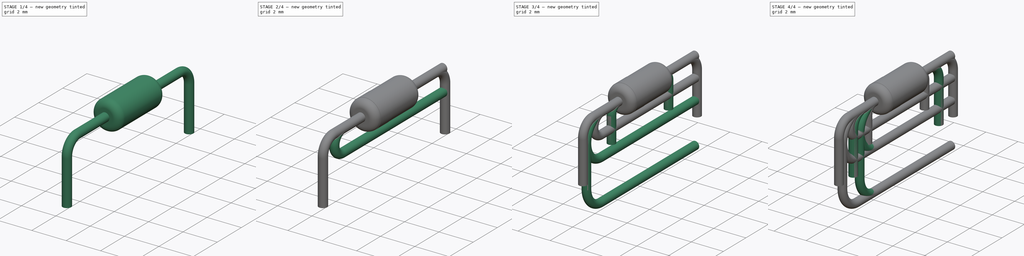
[diagram: build sequence overview — one tinted view per stage of 4, left to right]
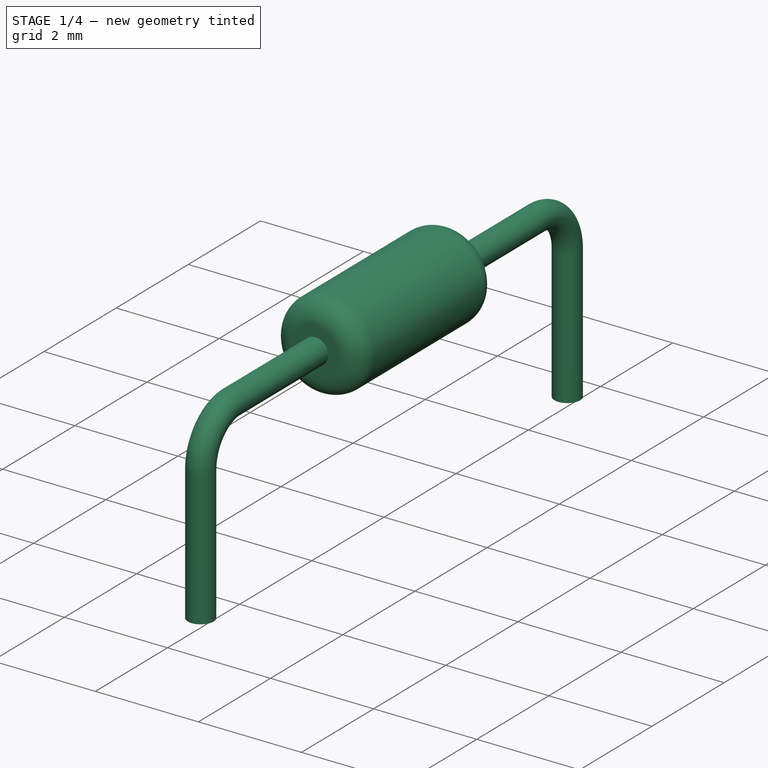
[diagram: stage 1 of 4 — iso view after this stage's code; geometry added in this stage tinted green]
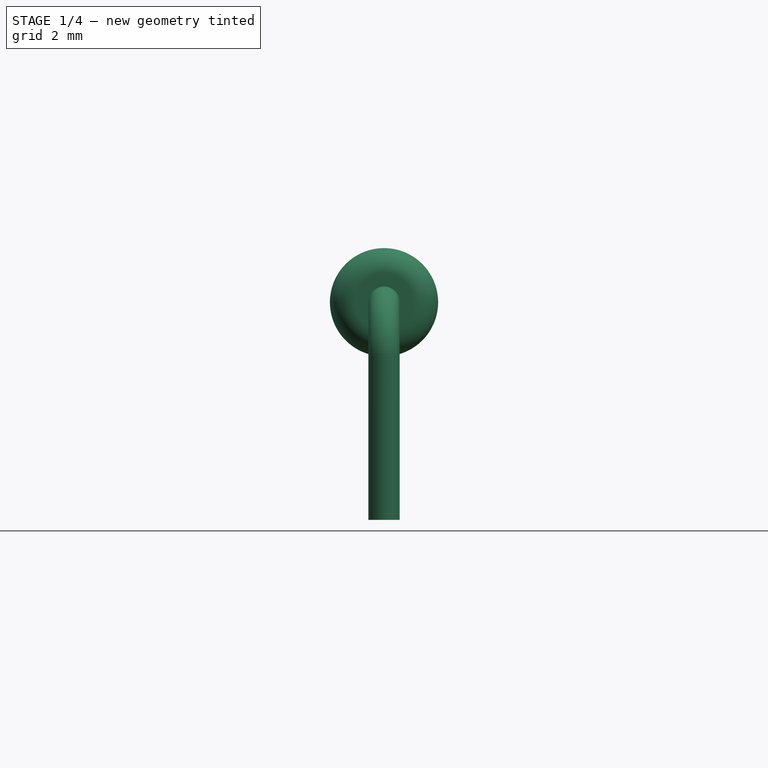
[diagram: stage 1 of 4 — front view after this stage's code; geometry added in this stage tinted green]
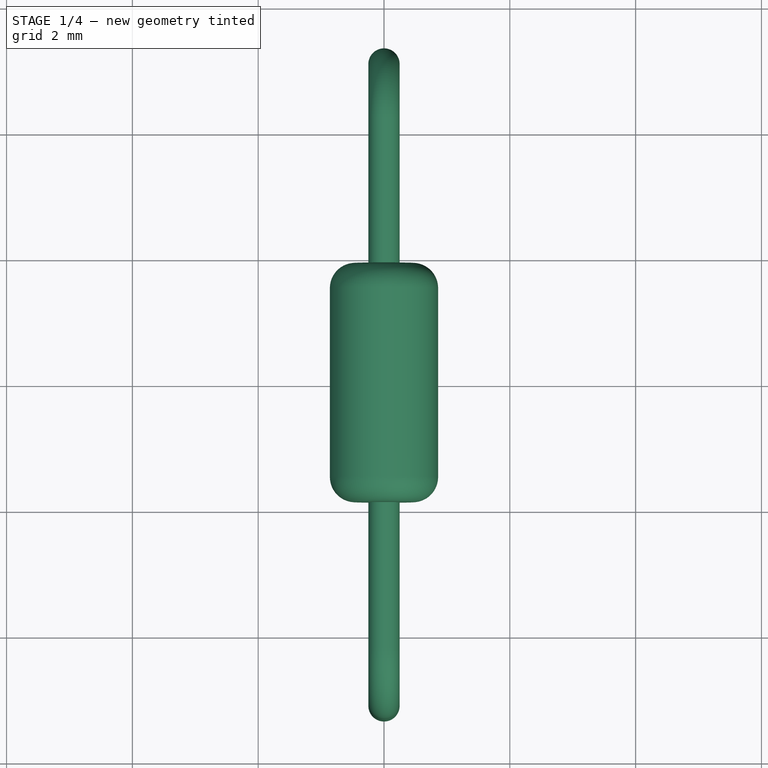
[diagram: stage 1 of 4 — top view after this stage's code; geometry added in this stage tinted green]
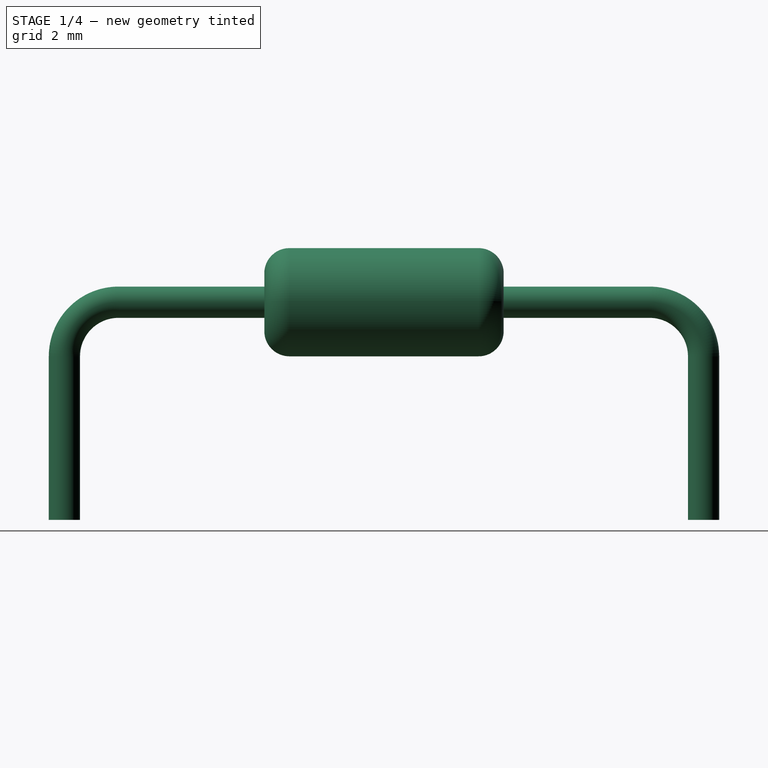
[diagram: stage 1 of 4 — right view after this stage's code; geometry added in this stage tinted green]
FCSTD DOCUMENT  (FreeCAD 0.19R17069 (Git))
Label: DO-35
License: All rights reserved
LicenseURL: http://en.wikipedia.org/wiki/All_rights_reserved
objects: Sketcher::SketchObject×20, PartDesign::Body×11, PartDesign::AdditivePipe×9, PartDesign::Pad×2, PartDesign::Fillet×1, Part::MultiFuse×1
note: 55 computed .brp shape members not serialized (recipe doc carries the construction recipe); baked Part::Feature solids carry a one-line shape summary decoded from their .brp

FEATURE [Sketcher::SketchObject] Sketch
  AttachmentOffset = pos=(0,0,0) rot=(0,0,1;-1.5708rad)
  MapMode = 5
  Placement = pos=(0,0,0) rot=(-0.57735,-0.57735,0.57735;4.18879rad)
  Support = -> [XZ_Plane]
  expr: Constraints[1] = (1.53 + 1.91) / 2 / 2
  sketch-geometry (1):
    g0: Circle CenterX=0 CenterY=0 CenterZ=0 NormalX=0 NormalY=0 NormalZ=1 AngleXU=0 Radius=0.86
  constraints (2):
    c: Coincident(g0,g-1)
    c: Radius(g0) = 0.86
FEATURE [PartDesign::Pad] Pad
  Length = 3.805
  Length2 = 100
  Midplane = true
  Placement = pos=(0,0,0) rot=(1,0,0;1.5708rad)
  Profile = -> Sketch
  Type = 0
  expr: Length = (3.05 + 4.56) / 2
FEATURE [PartDesign::Body] Body002  label="Leads_P7.62"
  Group = -> [Sketch002,Sketch003,AdditivePipe]
  Origin = -> Origin002
  Tip = -> AdditivePipe
FEATURE [Sketcher::SketchObject] Sketch004
  MapMode = 5
  Placement = pos=(0,0,0) rot=(0.57735,0.57735,0.57735;2.0944rad)
  Support = -> [YZ_Plane003]
  expr: Constraints[11] = (1.53 + 1.91) / 2 / 2
  expr: Constraints[10] = 4 * 2.54
  sketch-geometry (5):
    g0: LineSegment StartX=-4.22 StartY=0 StartZ=0 EndX=4.22 EndY=0 EndZ=0
    g1: LineSegment StartX=-5.08 StartY=-0.86 StartZ=0 EndX=-5.08 EndY=-3.46 EndZ=0
    g2: LineSegment StartX=5.08 StartY=-0.86 StartZ=0 EndX=5.08 EndY=-3.46 EndZ=0
    g3: ArcOfCircle CenterX=-4.22 CenterY=-0.86 CenterZ=0 NormalX=0 NormalY=0 NormalZ=1 AngleXU=0 Radius=0.86 StartAngle=1.5708 EndAngle=3.14159
    g4: ArcOfCircle CenterX=4.22 CenterY=-0.86 CenterZ=0 NormalX=0 NormalY=0 NormalZ=1 AngleXU=0 Radius=0.86 StartAngle=0 EndAngle=1.5708
  constraints (13):
    c: Vertical(g1)
    c: Vertical(g2)
    c: Equal(g2,g1)
    c: Tangent(g0,g3) = 1.5708
    c: Tangent(g1,g3) = -1.5708
    c: Tangent(g0,g4) = 1.5708
    c: Tangent(g2,g4) = 1.5708
    c: Symmetric(g0,g0,g-2)
    c: Equal(g4,g3)
    c: PointOnObject(g0,g-1)
    c: DistanceX(g1,g2) = 10.16
    c: DistanceY(g1,g0) = 0.86
    c: DistanceY(g1,g1) = 2.6
FEATURE [Sketcher::SketchObject] Sketch005
  AttachmentOffset = pos=(0,0,0) rot=(0,0,1;-1.5708rad)
  MapMode = 5
  Placement = pos=(0,0,0) rot=(-0.57735,-0.57735,0.57735;4.18879rad)
  Support = -> [XZ_Plane003]
  expr: Constraints[1] = (0.46 + 0.533) / 2 / 2
  sketch-geometry (1):
    g0: Circle CenterX=0 CenterY=0 CenterZ=0 NormalX=0 NormalY=0 NormalZ=1 AngleXU=0 Radius=0.24825
  constraints (2):
    c: Coincident(g0,g-1)
    c: Radius(g0) = 0.24825
FEATURE [PartDesign::AdditivePipe] AdditivePipe001
  AuxilleryCurvelinear = true
  AuxillerySpineTangent = false
  Binormal = (0,0,0)
  Mode = 0
  Placement = pos=(0,0,0) rot=(1,0,0;1.5708rad)
  Profile = -> Sketch005
  Refine = true
  Spine = -> Sketch004
  SpineTangent = false
  Transformation = 0
  Transition = 0
FEATURE [PartDesign::Body] Body010  label="Leads_Vertical_K_Down_P1.28"
  Group = -> [Sketch018,Sketch019,AdditivePipe008]
  Origin = -> Origin010
  Placement = pos=(0,0,0) rot=(0,0,1;3.14159rad)
  Tip = -> AdditivePipe008
FEATURE [PartDesign::Fillet] Fillet
  Base = -> Pad [Edge2,Edge3]
  BaseFeature = -> Pad
  Placement = pos=(0,0,0) rot=(1,0,0;1.5708rad)
  Radius = 0.4
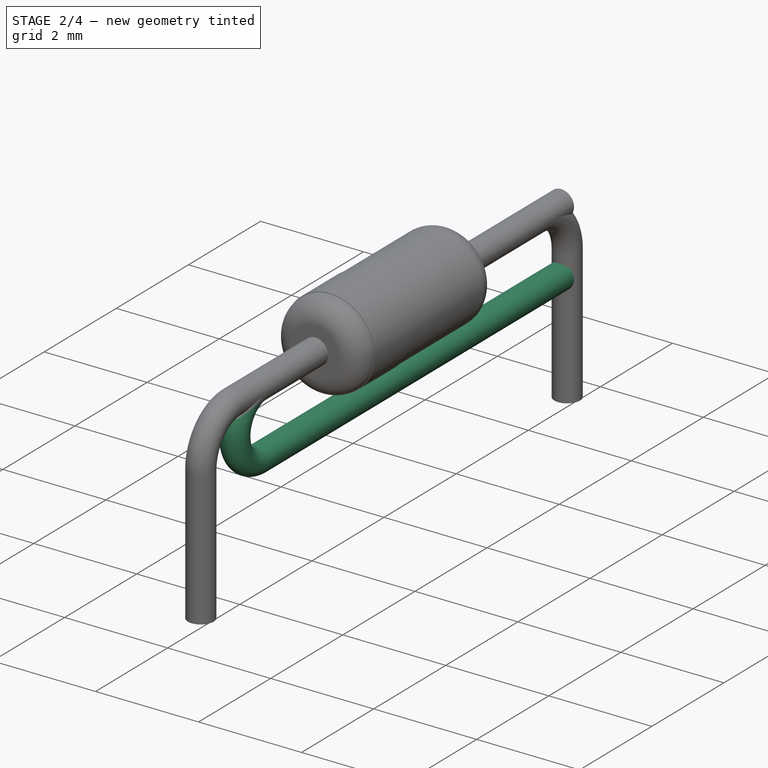
[diagram: stage 2 of 4 — iso view after this stage's code; geometry added in this stage tinted green]
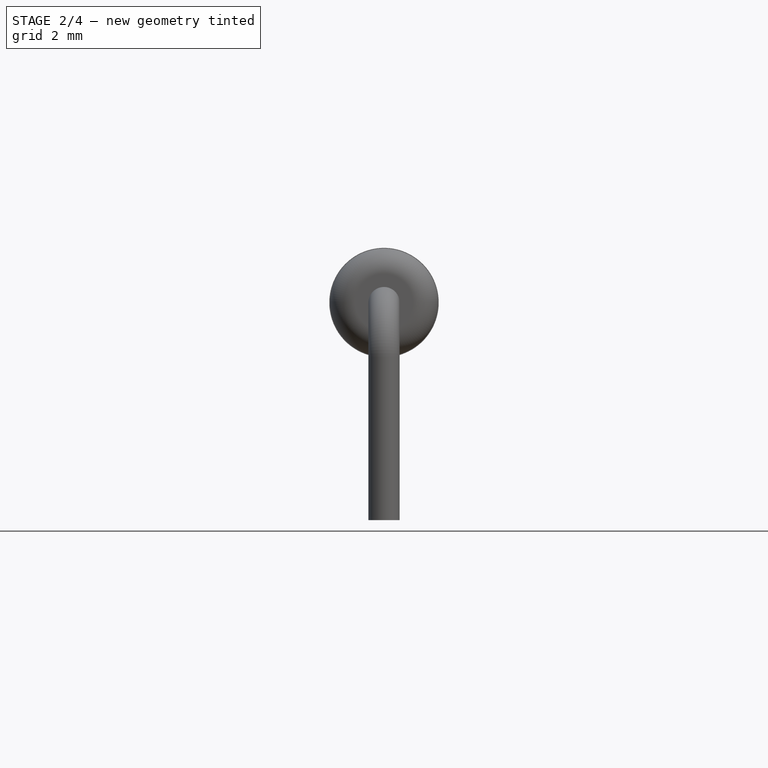
[diagram: stage 2 of 4 — front view after this stage's code; geometry added in this stage tinted green]
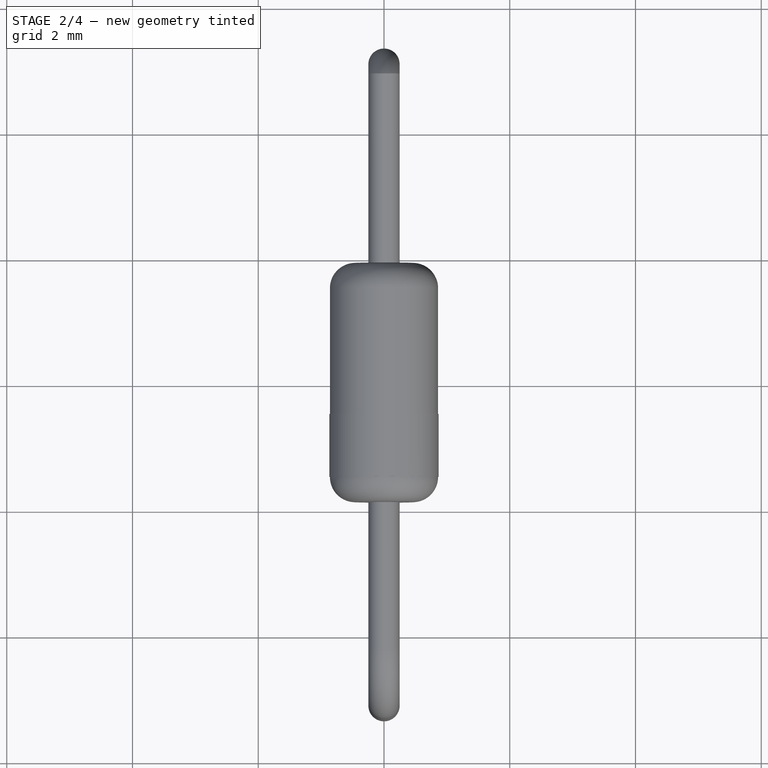
[diagram: stage 2 of 4 — top view after this stage's code; geometry added in this stage tinted green]
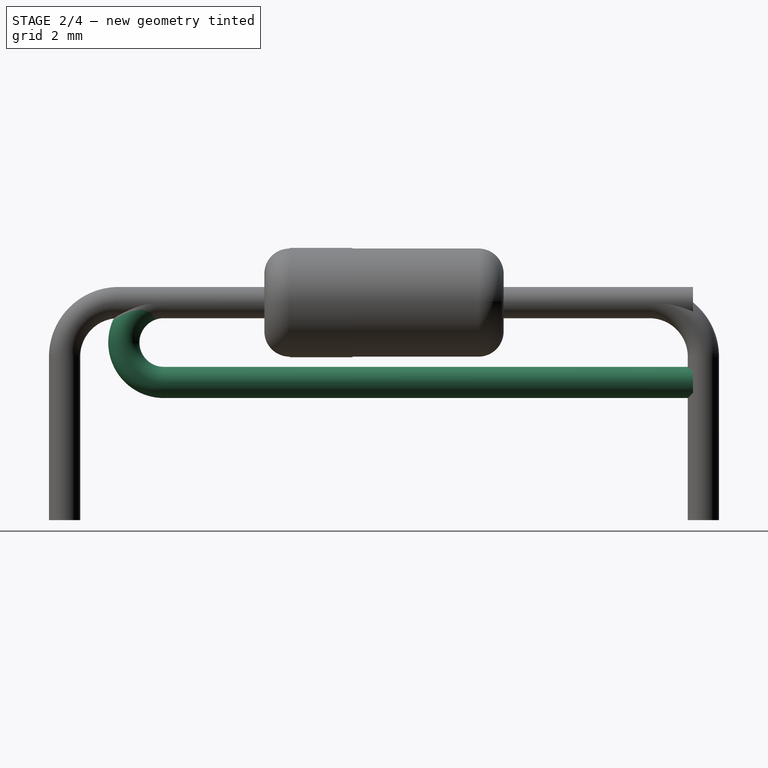
[diagram: stage 2 of 4 — right view after this stage's code; geometry added in this stage tinted green]
FEATURE [Sketcher::SketchObject] Sketch001
  AttachmentOffset = pos=(0,0,1) rot=(0,0,1;-1.5708rad)
  MapMode = 5
  Placement = pos=(0,-1,-2e-16) rot=(-0.57735,-0.57735,0.57735;4.18879rad)
  Support = -> [XZ_Plane001]
  expr: Constraints[1] = (1.53 + 1.91) / 2 / 2 + 0.01
  sketch-geometry (1):
    g0: Circle CenterX=0 CenterY=0 CenterZ=0 NormalX=0 NormalY=0 NormalZ=1 AngleXU=0 Radius=0.87
  constraints (2):
    c: Coincident(g0,g-1)
    c: Radius(g0) = 0.87
FEATURE [PartDesign::Pad] Pad001
  Length = 1
  Length2 = 100
  Midplane = true
  Placement = pos=(0,0,0) rot=(1,0,0;1.5708rad)
  Profile = -> Sketch001
  Type = 0
FEATURE [PartDesign::Body] Body009  label="Leads_Vertical_K_Up_P1.28"
  Group = -> [Sketch016,Sketch017,AdditivePipe007]
  Origin = -> Origin009
  Tip = -> AdditivePipe007
FEATURE [Sketcher::SketchObject] Sketch018
  MapMode = 5
  Placement = pos=(0,0,0) rot=(0.57735,0.57735,0.57735;2.0944rad)
  Support = -> [YZ_Plane010]
  expr: Constraints[16] = (2.03 + 2.72) / 2 / 2
  expr: Constraints[15] = (4.06 + 5.2) / 2 / 2
  expr: Constraints[7] = (4.06 + 5.2) / 2 / 2
  expr: Constraints[3] = 2.54 / 4
  sketch-geometry (7):
    g0: LineSegment StartX=4.915 StartY=0 StartZ=0 EndX=-3.5025 EndY=-2.07e-14 EndZ=0
    g1: ArcOfCircle CenterX=-3.5025 CenterY=-0.635 CenterZ=0 NormalX=0 NormalY=0 NormalZ=1 AngleXU=0 Radius=0.635 StartAngle=1.5708 EndAngle=4.71239
    g2: LineSegment StartX=-3.5025 StartY=-1.27 StartZ=0 EndX=4.915 EndY=-1.27 EndZ=0
    g3: GeomPoint X=2.315 Y=0 Z=0
    g4: GeomPoint X=2.315 Y=-1.27 Z=0
    g5: GeomPoint X=-4.1375 Y=-0.635 Z=0
    g6: GeomPoint X=-2.315 Y=0 Z=0
  constraints (17):
    c: PointOnObject(g0,g-1)
    c: PointOnObject(g0,g-1)
    c: Horizontal(g2)
    c: Radius(g1) = 0.635
    c: Tangent(g1,g0) = -1.5708
    c: Tangent(g2,g1) = -1.5708
    c: PointOnObject(g3,g0)
    c: DistanceX(g-1,g3) = 2.315
    c: DistanceX(g3,g0) = 2.6
    c: PointOnObject(g4,g2)
    c: DistanceX(g4,g2) = 2.6
    c: Vertical(g0,g2)
    c: PointOnObject(g5,g1)
    c: Horizontal(g1,g5)
    c: PointOnObject(g6,g0)
    c: DistanceX(g6,g-1) = 2.315
    c: DistanceX(g0,g6) = 1.1875
FEATURE [Sketcher::SketchObject] Sketch019
  AttachmentOffset = pos=(0,0,0) rot=(0,0,1;-1.5708rad)
  MapMode = 5
  Placement = pos=(0,0,0) rot=(-0.57735,-0.57735,0.57735;4.18879rad)
  Support = -> [XZ_Plane010]
  expr: Constraints[1] = (0.46 + 0.533) / 2 / 2
  sketch-geometry (1):
    g0: Circle CenterX=0 CenterY=0 CenterZ=0 NormalX=0 NormalY=0 NormalZ=1 AngleXU=0 Radius=0.24825
  constraints (2):
    c: Coincident(g0,g-1)
    c: Radius(g0) = 0.24825
FEATURE [PartDesign::AdditivePipe] AdditivePipe008
  AuxilleryCurvelinear = true
  AuxillerySpineTangent = false
  Binormal = (0,0,0)
  Mode = 0
  Placement = pos=(0,0,0) rot=(1,0,0;1.5708rad)
  Profile = -> Sketch019
  Refine = true
  Spine = -> Sketch018
  SpineTangent = false
  Transformation = 0
  Transition = 0
FEATURE [PartDesign::Body] Body
  Group = -> [Sketch,Pad,Fillet]
  Origin = -> Origin
  Tip = -> Fillet
FEATURE [Part::MultiFuse] Fusion  label="DO-35_P10.16"
  Shapes = -> [Body001,Body,Body003]
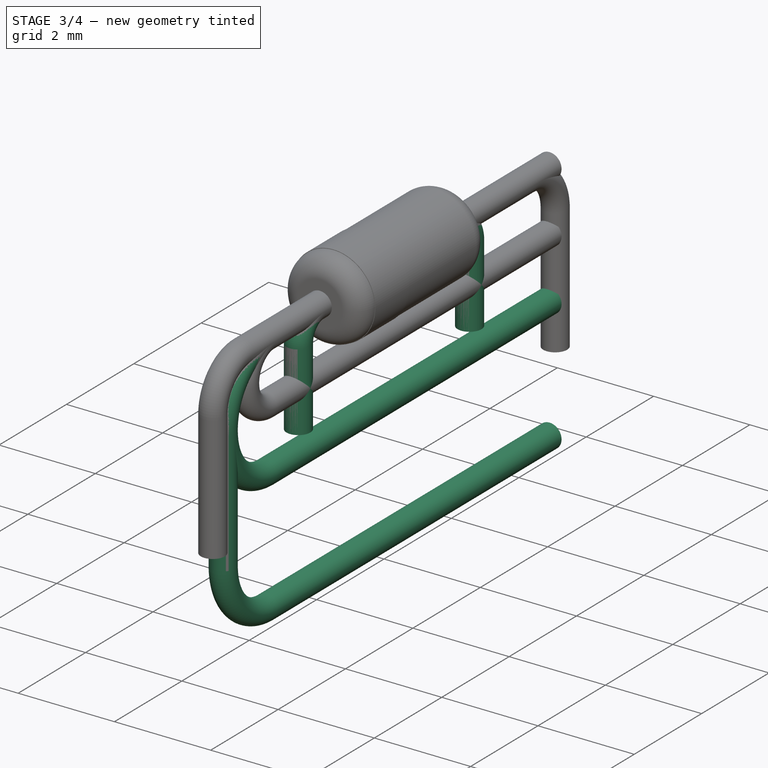
[diagram: stage 3 of 4 — iso view after this stage's code; geometry added in this stage tinted green]
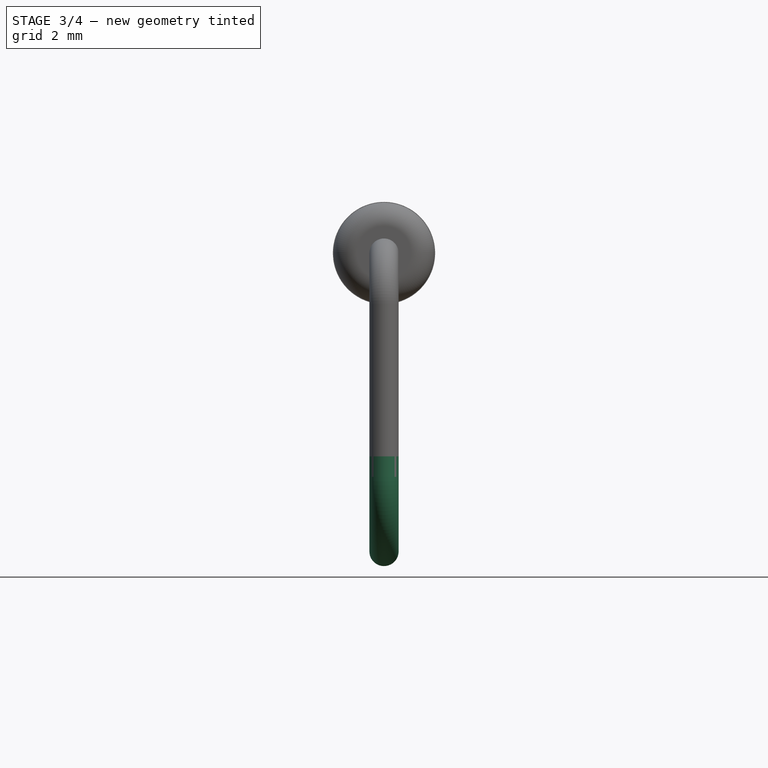
[diagram: stage 3 of 4 — front view after this stage's code; geometry added in this stage tinted green]
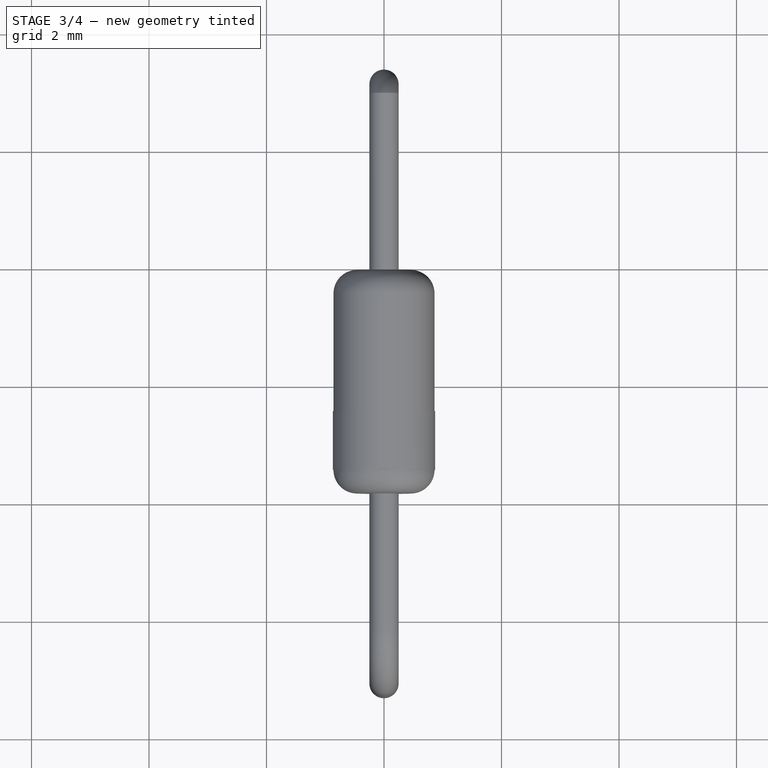
[diagram: stage 3 of 4 — top view after this stage's code; geometry added in this stage tinted green]
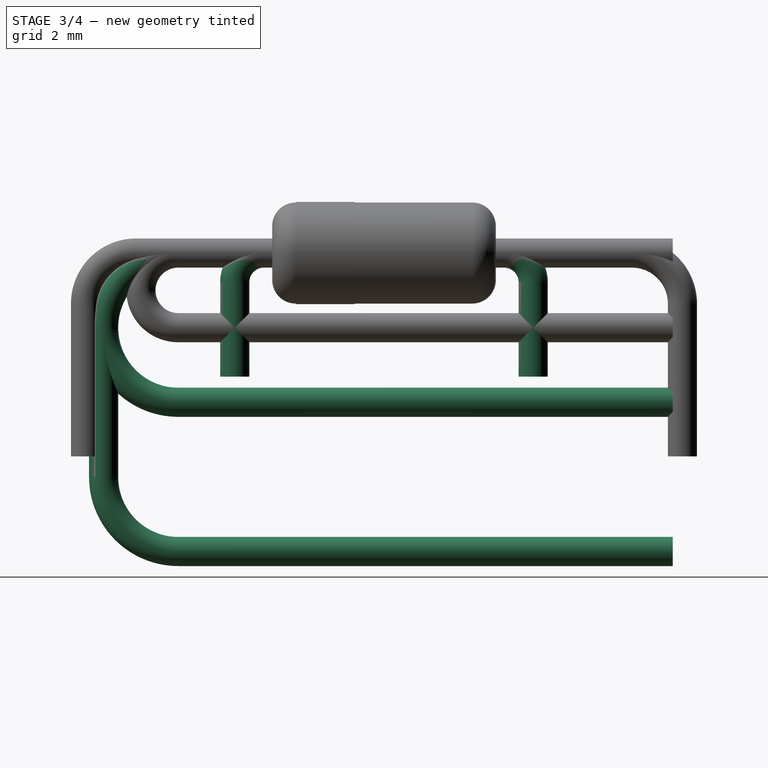
[diagram: stage 3 of 4 — right view after this stage's code; geometry added in this stage tinted green]
FEATURE [PartDesign::Body] Body005  label="Leads_Vertical_K_Up_P5.08"
  Group = -> [Sketch008,Sketch009,AdditivePipe003]
  Origin = -> Origin005
  Tip = -> AdditivePipe003
FEATURE [Sketcher::SketchObject] Sketch010
  MapMode = 5
  Placement = pos=(0,0,0) rot=(0.57735,0.57735,0.57735;2.0944rad)
  Support = -> [YZ_Plane006]
  expr: Constraints[16] = (2.03 + 2.72) / 2 / 2
  expr: Constraints[15] = (4.06 + 5.2) / 2 / 2
  expr: Constraints[7] = (4.06 + 5.2) / 2 / 2
  expr: Constraints[3] = 2.54 / 2
  sketch-geometry (7):
    g0: LineSegment StartX=4.915 StartY=0 StartZ=0 EndX=-3.5025 EndY=0 EndZ=0
    g1: ArcOfCircle CenterX=-3.5025 CenterY=-1.27 CenterZ=0 NormalX=0 NormalY=0 NormalZ=1 AngleXU=0 Radius=1.27 StartAngle=1.5708 EndAngle=4.71239
    g2: LineSegment StartX=-3.5025 StartY=-2.54 StartZ=0 EndX=4.915 EndY=-2.54 EndZ=0
    g3: GeomPoint X=2.315 Y=0 Z=0
    g4: GeomPoint X=2.315 Y=-2.54 Z=0
    g5: GeomPoint X=-4.7725 Y=-1.27 Z=0
    g6: GeomPoint X=-2.315 Y=0 Z=0
  constraints (17):
    c: PointOnObject(g0,g-1)
    c: PointOnObject(g0,g-1)
    c: Horizontal(g2)
    c: Radius(g1) = 1.27
    c: Tangent(g1,g0) = -1.5708
    c: Tangent(g2,g1) = -1.5708
    c: PointOnObject(g3,g0)
    c: DistanceX(g-1,g3) = 2.315
    c: DistanceX(g3,g0) = 2.6
    c: PointOnObject(g4,g2)
    c: DistanceX(g4,g2) = 2.6
    c: Vertical(g0,g2)
    c: PointOnObject(g5,g1)
    c: Horizontal(g1,g5)
    c: PointOnObject(g6,g0)
    c: DistanceX(g6,g-1) = 2.315
    c: DistanceX(g0,g6) = 1.1875
FEATURE [Sketcher::SketchObject] Sketch011
  AttachmentOffset = pos=(0,0,0) rot=(0,0,1;-1.5708rad)
  MapMode = 5
  Placement = pos=(0,0,0) rot=(-0.57735,-0.57735,0.57735;4.18879rad)
  Support = -> [XZ_Plane006]
  expr: Constraints[1] = (0.46 + 0.533) / 2 / 2
  sketch-geometry (1):
    g0: Circle CenterX=0 CenterY=0 CenterZ=0 NormalX=0 NormalY=0 NormalZ=1 AngleXU=0 Radius=0.24825
  constraints (2):
    c: Coincident(g0,g-1)
    c: Radius(g0) = 0.24825
FEATURE [PartDesign::AdditivePipe] AdditivePipe004
  AuxilleryCurvelinear = true
  AuxillerySpineTangent = false
  Binormal = (0,0,0)
  Mode = 0
  Placement = pos=(0,0,0) rot=(1,0,0;1.5708rad)
  Profile = -> Sketch011
  Refine = true
  Spine = -> Sketch010
  SpineTangent = false
  Transformation = 0
  Transition = 0
FEATURE [PartDesign::Body] Body006  label="Leads_Vertical_K_Down_P2.54"
  Group = -> [Sketch010,Sketch011,AdditivePipe004]
  Origin = -> Origin006
  Placement = pos=(0,0,0) rot=(0,0,1;3.14159rad)
  Tip = -> AdditivePipe004
FEATURE [Sketcher::SketchObject] Sketch012
  MapMode = 5
  Placement = pos=(0,0,0) rot=(0.57735,0.57735,0.57735;2.0944rad)
  Support = -> [YZ_Plane007]
  expr: Constraints[19] = (2.03 + 2.72) / 2 / 2
  expr: Constraints[18] = 1.27
  expr: Constraints[9] = (4.06 + 5.2) / 2 / 2
  expr: Constraints[3] = (4.06 + 5.2) / 2 / 2
  sketch-geometry (8):
    g0: LineSegment StartX=4.915 StartY=0 StartZ=0 EndX=-3.5025 EndY=0 EndZ=0
    g1: LineSegment StartX=-3.5025 StartY=-5.08 StartZ=0 EndX=4.915 EndY=-5.08 EndZ=0
    g2: GeomPoint X=2.315 Y=0 Z=0
    g3: GeomPoint X=2.315 Y=-5.08 Z=0
    g4: GeomPoint X=-2.315 Y=0 Z=0
    g5: LineSegment StartX=-4.7725 StartY=-1.27 StartZ=0 EndX=-4.7725 EndY=-3.81 EndZ=0
    g6: ArcOfCircle CenterX=-3.5025 CenterY=-1.27 CenterZ=0 NormalX=0 NormalY=0 NormalZ=1 AngleXU=0 Radius=1.27 StartAngle=1.5708 EndAngle=3.14159
    g7: ArcOfCircle CenterX=-3.5025 CenterY=-3.81 CenterZ=0 NormalX=0 NormalY=0 NormalZ=1 AngleXU=0 Radius=1.27 StartAngle=3.14159 EndAngle=4.71239
  constraints (20):
    c: PointOnObject(g0,g-1)
    c: Horizontal(g1)
    c: PointOnObject(g2,g0)
    c: DistanceX(g-1,g2) = 2.315
    c: DistanceX(g2,g0) = 2.6
    c: PointOnObject(g3,g1)
    c: DistanceX(g3,g1) = 2.6
    c: Vertical(g0,g1)
    c: PointOnObject(g4,g0)
    c: DistanceX(g4,g-1) = 2.315
    c: Vertical(g5)
    c: Tangent(g0,g6) = -1.5708
    c: Tangent(g5,g6) = -1.5708
    c: Tangent(g1,g7) = -1.5708
    c: Tangent(g5,g7) = -1.5708
    c: DistanceY(g1,g0) = 5.08
    c: PointOnObject(g0,g-1)
    c: Equal(g7,g6)
    c: Radius(g6) = 1.27
    c: DistanceX(g0,g4) = 1.1875
FEATURE [Sketcher::SketchObject] Sketch013
  AttachmentOffset = pos=(0,0,0) rot=(0,0,1;-1.5708rad)
  MapMode = 5
  Placement = pos=(0,0,0) rot=(-0.57735,-0.57735,0.57735;4.18879rad)
  Support = -> [XZ_Plane007]
  expr: Constraints[1] = (0.46 + 0.533) / 2 / 2
  sketch-geometry (1):
    g0: Circle CenterX=0 CenterY=0 CenterZ=0 NormalX=0 NormalY=0 NormalZ=1 AngleXU=0 Radius=0.24825
  constraints (2):
    c: Coincident(g0,g-1)
    c: Radius(g0) = 0.24825
FEATURE [PartDesign::AdditivePipe] AdditivePipe005
  AuxilleryCurvelinear = true
  AuxillerySpineTangent = false
  Binormal = (0,0,0)
  Mode = 0
  Placement = pos=(0,0,0) rot=(1,0,0;1.5708rad)
  Profile = -> Sketch013
  Refine = true
  Spine = -> Sketch012
  SpineTangent = false
  Transformation = 0
  Transition = 0
FEATURE [PartDesign::Body] Body007  label="Leads_Vertical_K_Down_P5.08"
  Group = -> [Sketch012,Sketch013,AdditivePipe005]
  Origin = -> Origin007
  Placement = pos=(0,0,0) rot=(0,0,1;3.14159rad)
  Tip = -> AdditivePipe005
FEATURE [Sketcher::SketchObject] Sketch014
  MapMode = 5
  Placement = pos=(0,0,0) rot=(0.57735,0.57735,0.57735;2.0944rad)
  Support = -> [YZ_Plane008]
  expr: Constraints[12] = 2.6 - (0.46 + 0.533) / 2
  expr: Constraints[11] = (0.46 + 0.533) / 2
  expr: Constraints[10] = 2 * 2.54
  sketch-geometry (5):
    g0: LineSegment StartX=-2.0435 StartY=-1.1e-14 StartZ=0 EndX=2.0435 EndY=0 EndZ=0
    g1: LineSegment StartX=-2.54 StartY=-0.4965 StartZ=0 EndX=-2.54 EndY=-2.1035 EndZ=0
    g2: LineSegment StartX=2.54 StartY=-0.4965 StartZ=0 EndX=2.54 EndY=-2.1035 EndZ=0
    g3: ArcOfCircle CenterX=-2.0435 CenterY=-0.4965 CenterZ=0 NormalX=0 NormalY=0 NormalZ=1 AngleXU=0 Radius=0.4965 StartAngle=1.5708 EndAngle=3.14159
    g4: ArcOfCircle CenterX=2.0435 CenterY=-0.4965 CenterZ=0 NormalX=0 NormalY=0 NormalZ=1 AngleXU=0 Radius=0.4965 StartAngle=0 EndAngle=1.5708
  constraints (13):
    c: Vertical(g1)
    c: Vertical(g2)
    c: Equal(g2,g1)
    c: Tangent(g0,g3) = 1.5708
    c: Tangent(g1,g3) = -1.5708
    c: Tangent(g0,g4) = 1.5708
    c: Tangent(g2,g4) = 1.5708
    c: Symmetric(g0,g0,g-2)
    c: Equal(g4,g3)
    c: PointOnObject(g0,g-1)
    c: DistanceX(g1,g2) = 5.08
    c: DistanceY(g1,g0) = 0.4965
    c: DistanceY(g1,g0) = 2.1035
FEATURE [Sketcher::SketchObject] Sketch015
  AttachmentOffset = pos=(0,0,0) rot=(0,0,1;-1.5708rad)
  MapMode = 5
  Placement = pos=(0,0,0) rot=(-0.57735,-0.57735,0.57735;4.18879rad)
  Support = -> [XZ_Plane008]
  expr: Constraints[1] = (0.46 + 0.533) / 2 / 2
  sketch-geometry (1):
    g0: Circle CenterX=0 CenterY=0 CenterZ=0 NormalX=0 NormalY=0 NormalZ=1 AngleXU=0 Radius=0.24825
  constraints (2):
    c: Coincident(g0,g-1)
    c: Radius(g0) = 0.24825
FEATURE [PartDesign::AdditivePipe] AdditivePipe006
  AuxilleryCurvelinear = true
  AuxillerySpineTangent = false
  Binormal = (0,0,0)
  Mode = 0
  Placement = pos=(0,0,0) rot=(1,0,0;1.5708rad)
  Profile = -> Sketch015
  Refine = true
  Spine = -> Sketch014
  SpineTangent = false
  Transformation = 0
  Transition = 0
FEATURE [PartDesign::Body] Body008  label="Leads_P5.08"
  Group = -> [Sketch014,Sketch015,AdditivePipe006]
  Origin = -> Origin008
  Tip = -> AdditivePipe006
FEATURE [Sketcher::SketchObject] Sketch016
  MapMode = 5
  Placement = pos=(0,0,0) rot=(0.57735,0.57735,0.57735;2.0944rad)
  Support = -> [YZ_Plane009]
  expr: Constraints[16] = (2.03 + 2.72) / 2 / 2
  expr: Constraints[15] = (4.06 + 5.2) / 2 / 2
  expr: Constraints[7] = (4.06 + 5.2) / 2 / 2
  expr: Constraints[3] = 2.54 / 4
  sketch-geometry (7):
    g0: LineSegment StartX=4.915 StartY=0 StartZ=0 EndX=-3.5025 EndY=-2.07e-14 EndZ=0
    g1: ArcOfCircle CenterX=-3.5025 CenterY=-0.635 CenterZ=0 NormalX=0 NormalY=0 NormalZ=1 AngleXU=0 Radius=0.635 StartAngle=1.5708 EndAngle=4.71239
    g2: LineSegment StartX=-3.5025 StartY=-1.27 StartZ=0 EndX=4.915 EndY=-1.27 EndZ=0
    g3: GeomPoint X=2.315 Y=0 Z=0
    g4: GeomPoint X=2.315 Y=-1.27 Z=0
    g5: GeomPoint X=-4.1375 Y=-0.635 Z=0
    g6: GeomPoint X=-2.315 Y=0 Z=0
  constraints (17):
    c: PointOnObject(g0,g-1)
    c: PointOnObject(g0,g-1)
    c: Horizontal(g2)
    c: Radius(g1) = 0.635
    c: Tangent(g1,g0) = -1.5708
    c: Tangent(g2,g1) = -1.5708
    c: PointOnObject(g3,g0)
    c: DistanceX(g-1,g3) = 2.315
    c: DistanceX(g3,g0) = 2.6
    c: PointOnObject(g4,g2)
    c: DistanceX(g4,g2) = 2.6
    c: Vertical(g0,g2)
    c: PointOnObject(g5,g1)
    c: Horizontal(g1,g5)
    c: PointOnObject(g6,g0)
    c: DistanceX(g6,g-1) = 2.315
    c: DistanceX(g0,g6) = 1.1875
FEATURE [Sketcher::SketchObject] Sketch017
  AttachmentOffset = pos=(0,0,0) rot=(0,0,1;-1.5708rad)
  MapMode = 5
  Placement = pos=(0,0,0) rot=(-0.57735,-0.57735,0.57735;4.18879rad)
  Support = -> [XZ_Plane009]
  expr: Constraints[1] = (0.46 + 0.533) / 2 / 2
  sketch-geometry (1):
    g0: Circle CenterX=0 CenterY=0 CenterZ=0 NormalX=0 NormalY=0 NormalZ=1 AngleXU=0 Radius=0.24825
  constraints (2):
    c: Coincident(g0,g-1)
    c: Radius(g0) = 0.24825
FEATURE [PartDesign::AdditivePipe] AdditivePipe007
  AuxilleryCurvelinear = true
  AuxillerySpineTangent = false
  Binormal = (0,0,0)
  Mode = 0
  Placement = pos=(0,0,0) rot=(1,0,0;1.5708rad)
  Profile = -> Sketch017
  Refine = true
  Spine = -> Sketch016
  SpineTangent = false
  Transformation = 0
  Transition = 0
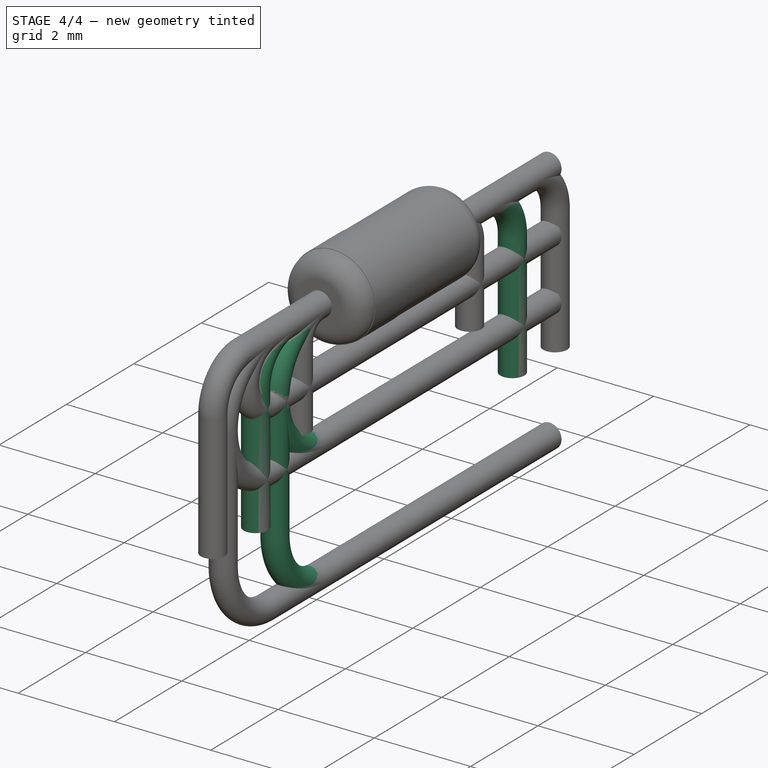
[diagram: stage 4 of 4 — iso view after this stage's code; geometry added in this stage tinted green]
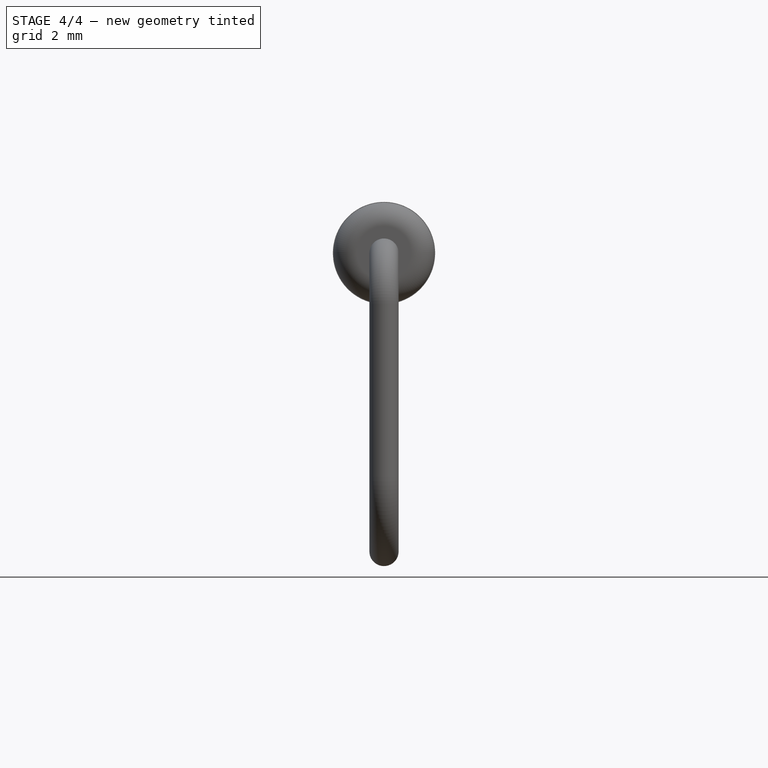
[diagram: stage 4 of 4 — front view after this stage's code; geometry added in this stage tinted green]
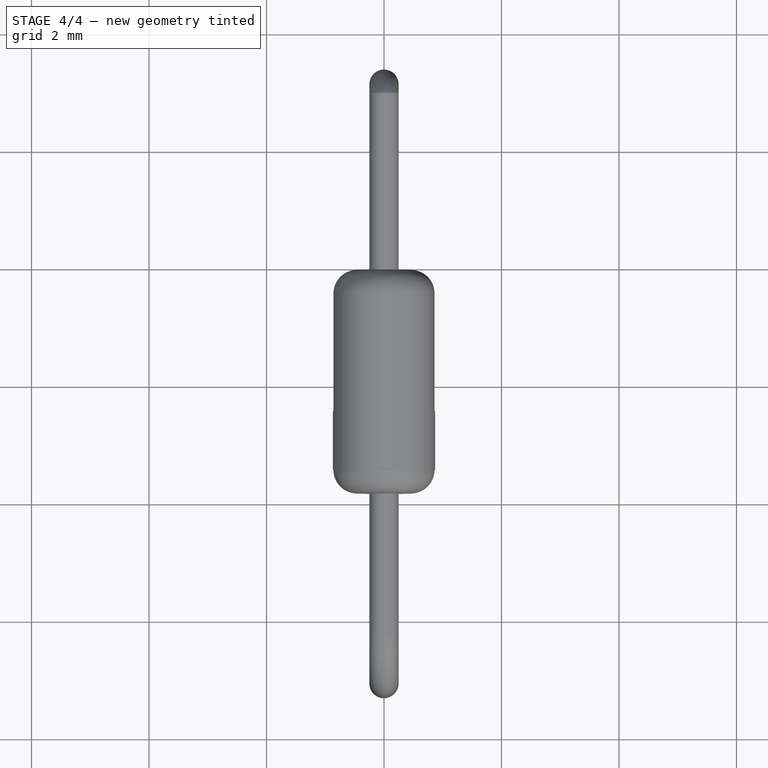
[diagram: stage 4 of 4 — top view after this stage's code; geometry added in this stage tinted green]
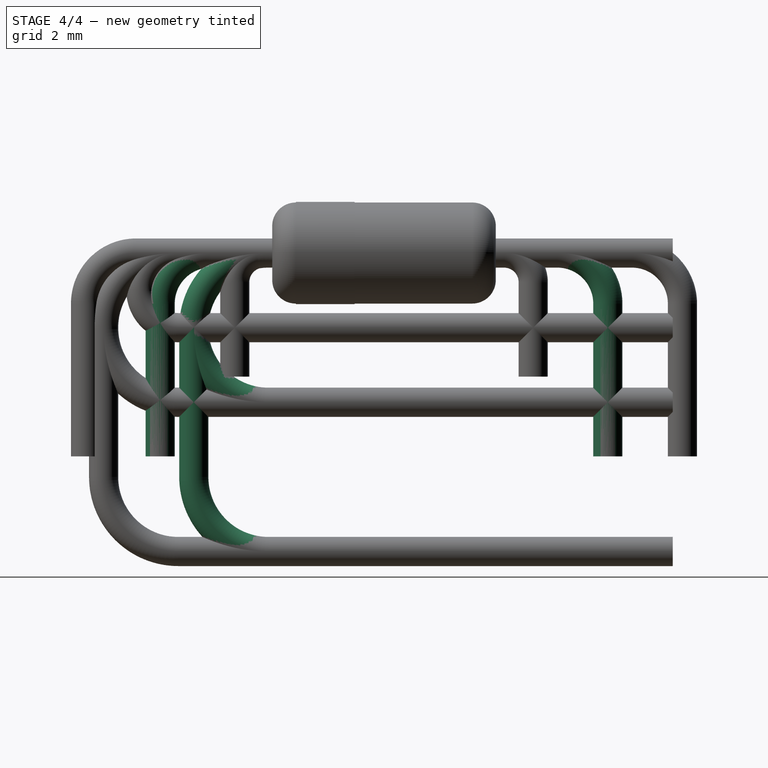
[diagram: stage 4 of 4 — right view after this stage's code; geometry added in this stage tinted green]
FEATURE [PartDesign::Body] Body001  label="Band"
  Group = -> [Sketch001,Pad001]
  Origin = -> Origin001
  Tip = -> Pad001
FEATURE [Sketcher::SketchObject] Sketch002
  MapMode = 5
  Placement = pos=(0,0,0) rot=(0.57735,0.57735,0.57735;2.0944rad)
  Support = -> [YZ_Plane002]
  expr: Constraints[11] = (1.53 + 1.91) / 2 / 2
  expr: Constraints[10] = 3 * 2.54
  sketch-geometry (5):
    g0: LineSegment StartX=-2.95 StartY=0 StartZ=0 EndX=2.95 EndY=0 EndZ=0
    g1: LineSegment StartX=-3.81 StartY=-0.86 StartZ=0 EndX=-3.81 EndY=-3.46 EndZ=0
    g2: LineSegment StartX=3.81 StartY=-0.86 StartZ=0 EndX=3.81 EndY=-3.46 EndZ=0
    g3: ArcOfCircle CenterX=-2.95 CenterY=-0.86 CenterZ=0 NormalX=0 NormalY=0 NormalZ=1 AngleXU=0 Radius=0.86 StartAngle=1.5708 EndAngle=3.14159
    g4: ArcOfCircle CenterX=2.95 CenterY=-0.86 CenterZ=0 NormalX=0 NormalY=0 NormalZ=1 AngleXU=0 Radius=0.86 StartAngle=0 EndAngle=1.5708
  constraints (13):
    c: Vertical(g1)
    c: Vertical(g2)
    c: Equal(g2,g1)
    c: Tangent(g0,g3) = 1.5708
    c: Tangent(g1,g3) = -1.5708
    c: Tangent(g0,g4) = 1.5708
    c: Tangent(g2,g4) = 1.5708
    c: Symmetric(g0,g0,g-2)
    c: Equal(g4,g3)
    c: PointOnObject(g0,g-1)
    c: DistanceX(g1,g2) = 7.62
    c: DistanceY(g1,g0) = 0.86
    c: DistanceY(g1,g1) = 2.6
FEATURE [Sketcher::SketchObject] Sketch003
  AttachmentOffset = pos=(0,0,0) rot=(0,0,1;-1.5708rad)
  MapMode = 5
  Placement = pos=(0,0,0) rot=(-0.57735,-0.57735,0.57735;4.18879rad)
  Support = -> [XZ_Plane002]
  expr: Constraints[1] = (0.46 + 0.533) / 2 / 2
  sketch-geometry (1):
    g0: Circle CenterX=0 CenterY=0 CenterZ=0 NormalX=0 NormalY=0 NormalZ=1 AngleXU=0 Radius=0.24825
  constraints (2):
    c: Coincident(g0,g-1)
    c: Radius(g0) = 0.24825
FEATURE [PartDesign::AdditivePipe] AdditivePipe
  AuxilleryCurvelinear = true
  AuxillerySpineTangent = false
  Binormal = (0,0,0)
  Mode = 0
  Placement = pos=(0,0,0) rot=(1,0,0;1.5708rad)
  Profile = -> Sketch003
  Refine = true
  Spine = -> Sketch002
  SpineTangent = false
  Transformation = 0
  Transition = 0
FEATURE [PartDesign::Body] Body003  label="Leads_P10.16"
  Group = -> [Sketch004,Sketch005,AdditivePipe001]
  Origin = -> Origin003
  Tip = -> AdditivePipe001
FEATURE [Sketcher::SketchObject] Sketch006
  MapMode = 5
  Placement = pos=(0,0,0) rot=(0.57735,0.57735,0.57735;2.0944rad)
  Support = -> [YZ_Plane004]
  expr: Constraints[16] = 0
  expr: Constraints[15] = (3.55 + 4.32) / 2 / 2
  expr: Constraints[7] = (3.55 + 4.32) / 2 / 2
  expr: Constraints[3] = 2.54 / 2
  sketch-geometry (7):
    g0: LineSegment StartX=4.5675 StartY=0 StartZ=0 EndX=-1.9675 EndY=-5.96405e-11 EndZ=0
    g1: ArcOfCircle CenterX=-1.9675 CenterY=-1.27 CenterZ=0 NormalX=0 NormalY=0 NormalZ=1 AngleXU=0 Radius=1.27 StartAngle=1.5708 EndAngle=4.71239
    g2: LineSegment StartX=-1.9675 StartY=-2.54 StartZ=0 EndX=4.5675 EndY=-2.54 EndZ=0
    g3: GeomPoint X=1.9675 Y=0 Z=0
    g4: GeomPoint X=1.9675 Y=-2.54 Z=0
    g5: GeomPoint X=-3.2375 Y=-1.27 Z=0
    g6: GeomPoint X=-1.9675 Y=0 Z=0
  constraints (17):
    c: PointOnObject(g0,g-1)
    c: PointOnObject(g0,g-1)
    c: Horizontal(g2)
    c: Radius(g1) = 1.27
    c: Tangent(g1,g0) = -1.5708
    c: Tangent(g2,g1) = -1.5708
    c: PointOnObject(g3,g0)
    c: DistanceX(g-1,g3) = 1.9675
    c: DistanceX(g3,g0) = 2.6
    c: PointOnObject(g4,g2)
    c: DistanceX(g4,g2) = 2.6
    c: Vertical(g0,g2)
    c: PointOnObject(g5,g1)
    c: Horizontal(g1,g5)
    c: PointOnObject(g6,g0)
    c: DistanceX(g6,g-1) = 1.9675
    c: DistanceX(g0,g6) = 0
FEATURE [Sketcher::SketchObject] Sketch007
  AttachmentOffset = pos=(0,0,0) rot=(0,0,1;-1.5708rad)
  MapMode = 5
  Placement = pos=(0,0,0) rot=(-0.57735,-0.57735,0.57735;4.18879rad)
  Support = -> [XZ_Plane004]
  expr: Constraints[1] = (0.46 + 0.533) / 2 / 2
  sketch-geometry (1):
    g0: Circle CenterX=0 CenterY=0 CenterZ=0 NormalX=0 NormalY=0 NormalZ=1 AngleXU=0 Radius=0.24825
  constraints (2):
    c: Coincident(g0,g-1)
    c: Radius(g0) = 0.24825
FEATURE [PartDesign::AdditivePipe] AdditivePipe002
  AuxilleryCurvelinear = true
  AuxillerySpineTangent = false
  Binormal = (0,0,0)
  Mode = 0
  Placement = pos=(0,0,0) rot=(1,0,0;1.5708rad)
  Profile = -> Sketch007
  Refine = true
  Spine = -> Sketch006
  SpineTangent = false
  Transformation = 0
  Transition = 0
FEATURE [PartDesign::Body] Body004  label="Leads_Vertical_K_Up_P2.54"
  Group = -> [Sketch006,Sketch007,AdditivePipe002]
  Origin = -> Origin004
  Tip = -> AdditivePipe002
FEATURE [Sketcher::SketchObject] Sketch008
  MapMode = 5
  Placement = pos=(0,0,0) rot=(0.57735,0.57735,0.57735;2.0944rad)
  Support = -> [YZ_Plane005]
  expr: Constraints[19] = 0
  expr: Constraints[18] = 1.27
  expr: Constraints[9] = (3.55 + 4.32) / 2 / 2
  expr: Constraints[3] = (3.55 + 4.32) / 2 / 2
  sketch-geometry (8):
    g0: LineSegment StartX=4.5675 StartY=0 StartZ=0 EndX=-1.9675 EndY=0 EndZ=0
    g1: LineSegment StartX=-1.9675 StartY=-5.08 StartZ=0 EndX=4.5675 EndY=-5.08 EndZ=0
    g2: GeomPoint X=1.9675 Y=0 Z=0
    g3: GeomPoint X=1.9675 Y=-5.08 Z=0
    g4: GeomPoint X=-1.9675 Y=0 Z=0
    g5: LineSegment StartX=-3.2375 StartY=-1.27 StartZ=0 EndX=-3.2375 EndY=-3.81 EndZ=0
    g6: ArcOfCircle CenterX=-1.9675 CenterY=-1.27 CenterZ=0 NormalX=0 NormalY=0 NormalZ=1 AngleXU=0 Radius=1.27 StartAngle=1.5708 EndAngle=3.14159
    g7: ArcOfCircle CenterX=-1.9675 CenterY=-3.81 CenterZ=0 NormalX=0 NormalY=0 NormalZ=1 AngleXU=0 Radius=1.27 StartAngle=3.14159 EndAngle=4.71239
  constraints (20):
    c: PointOnObject(g0,g-1)
    c: Horizontal(g1)
    c: PointOnObject(g2,g0)
    c: DistanceX(g-1,g2) = 1.9675
    c: DistanceX(g2,g0) = 2.6
    c: PointOnObject(g3,g1)
    c: DistanceX(g3,g1) = 2.6
    c: Vertical(g0,g1)
    c: PointOnObject(g4,g0)
    c: DistanceX(g4,g-1) = 1.9675
    c: Vertical(g5)
    c: Tangent(g0,g6) = -1.5708
    c: Tangent(g5,g6) = -1.5708
    c: Tangent(g1,g7) = -1.5708
    c: Tangent(g5,g7) = -1.5708
    c: DistanceY(g1,g0) = 5.08
    c: PointOnObject(g0,g-1)
    c: Equal(g7,g6)
    c: Radius(g6) = 1.27
    c: DistanceX(g0,g4) = 0
FEATURE [Sketcher::SketchObject] Sketch009
  AttachmentOffset = pos=(0,0,0) rot=(0,0,1;-1.5708rad)
  MapMode = 5
  Placement = pos=(0,0,0) rot=(-0.57735,-0.57735,0.57735;4.18879rad)
  Support = -> [XZ_Plane005]
  expr: Constraints[1] = (0.46 + 0.533) / 2 / 2
  sketch-geometry (1):
    g0: Circle CenterX=0 CenterY=0 CenterZ=0 NormalX=0 NormalY=0 NormalZ=1 AngleXU=0 Radius=0.24825
  constraints (2):
    c: Coincident(g0,g-1)
    c: Radius(g0) = 0.24825
FEATURE [PartDesign::AdditivePipe] AdditivePipe003
  AuxilleryCurvelinear = true
  AuxillerySpineTangent = false
  Binormal = (0,0,0)
  Mode = 0
  Placement = pos=(0,0,0) rot=(1,0,0;1.5708rad)
  Profile = -> Sketch009
  Refine = true
  Spine = -> Sketch008
  SpineTangent = false
  Transformation = 0
  Transition = 0
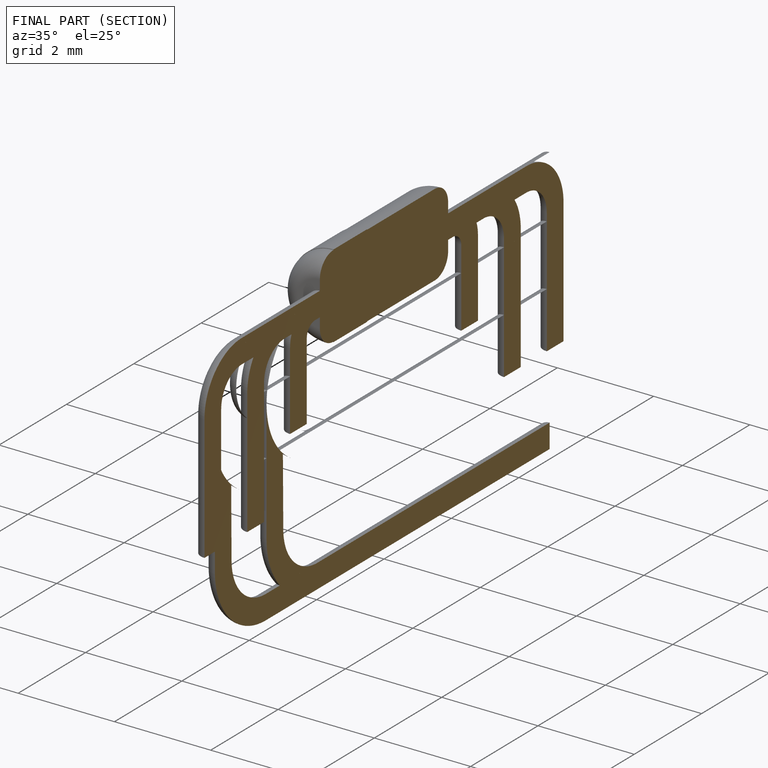
[diagram: finished part — half-section view (interior)]
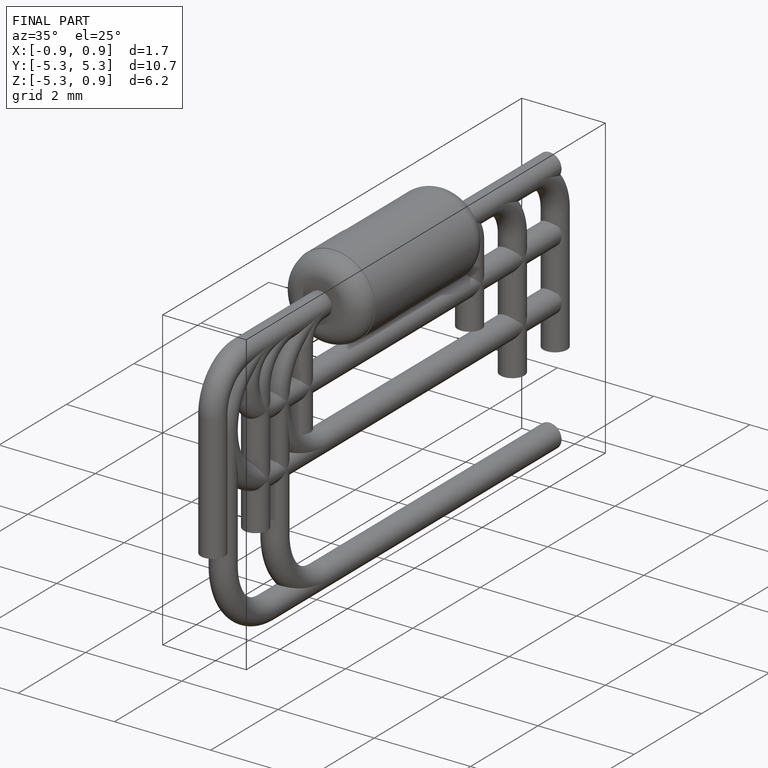
[diagram: finished part — iso view with bounding-box wireframe]
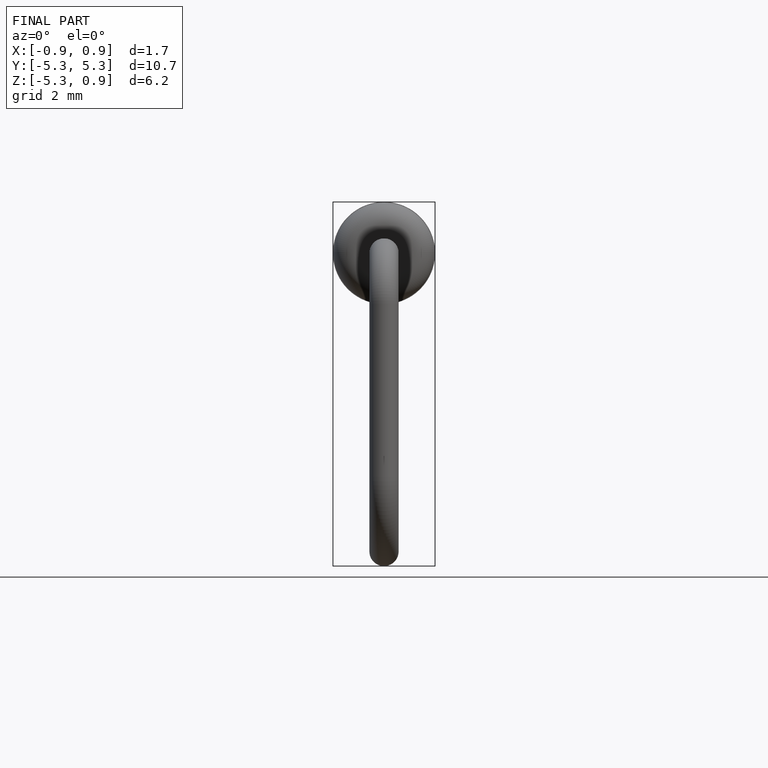
[diagram: finished part — front view with bounding-box wireframe]
